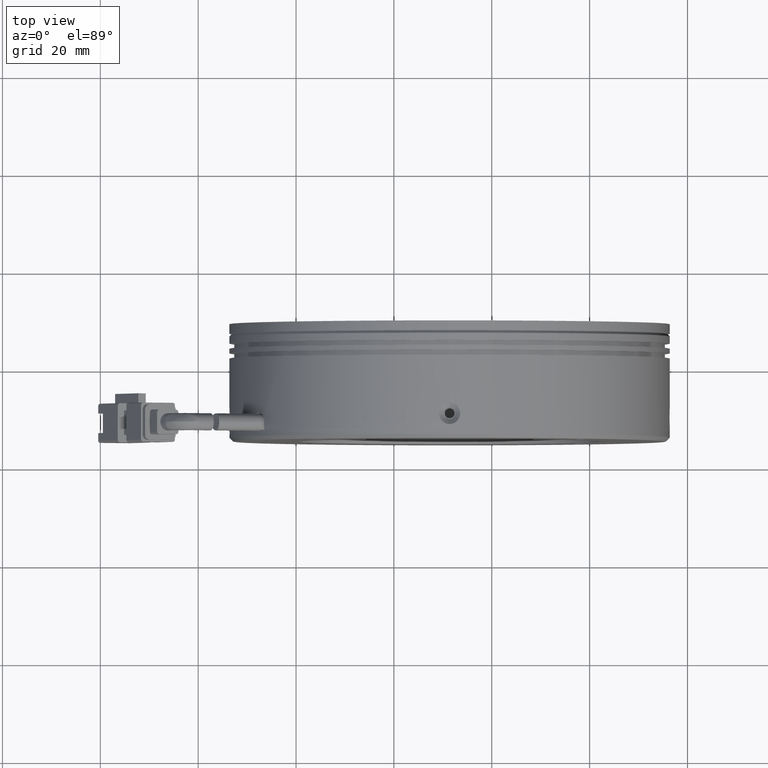
[diagram: clean part render]
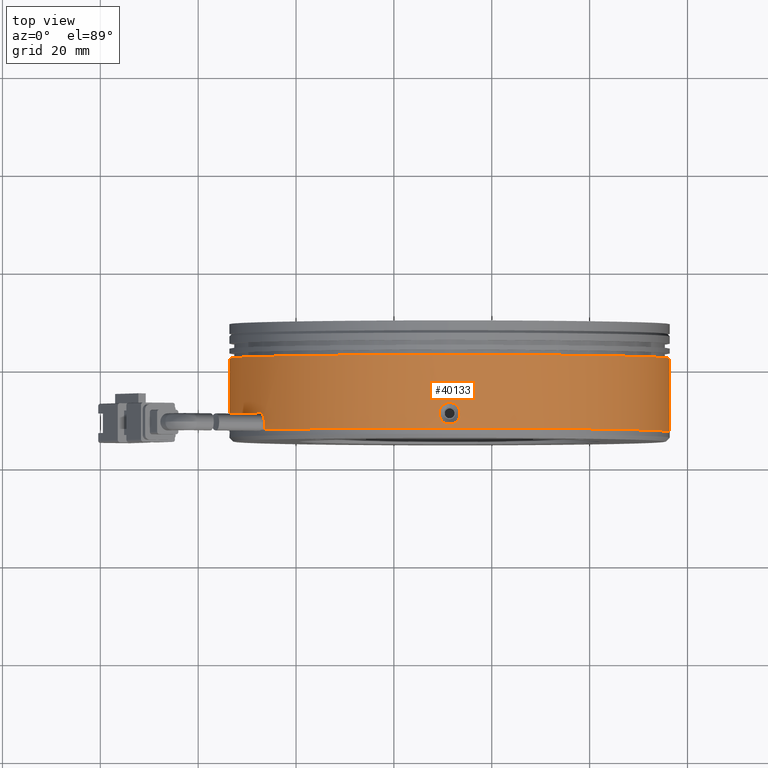
[diagram: same view with one face highlighted and labeled with its STEP entity id]
A machine part, top view. The second image highlights one B-rep face of the part: STEP entity #40133.
In plain terms, the highlighted cylindrical surface (partial cylindrical patch) has radius 45 mm, axis along (-0, 1, -0).
Its self-contained STEP definition (entity closure, byte-faithful):
#1022 = CIRCLE ( 'NONE', #13355, 45.00000000000000700 ) ;
#1561 = ORIENTED_EDGE ( 'NONE', *, *, #25722, .T. ) ;
#1722 = DIRECTION ( 'NONE',  ( -0.0000000000000000000, 1.000000000000000000, -0.0000000000000000000 ) ) ;
#2210 = CARTESIAN_POINT ( 'NONE',  ( -6.582203148761800000, 10.67532294286833800, 44.95371608337226400 ) ) ;
#2340 = B_SPLINE_CURVE_WITH_KNOTS ( 'NONE', 3,
 ( #102224, #121687, #15485, #83083, #25242, #92873, #34939, #102647, #44636, #112404, #54322, #122106, #64059, #6126, #73734, #15905, #83495, #25648, #93283, #35357, #103065, #45052, #112809, #54731, #122513, #64483, #6541, #74142, #16329, #83923 ),
 .UNSPECIFIED., .F., .F.,
 ( 4, 2, 2, 2, 2, 2, 2, 2, 2, 2, 2, 2, 2, 2, 4 ),
 ( 0.006812577702656749000, 0.007238343469868680800, 0.007664109237080613500, 0.008089875004292545300, 0.008515640771504478000, 0.009367172305928341700, 0.009792938073140274400, 0.01021870384035220700, 0.01064446960756414200, 0.01107023537477607200, 0.01192176690919994500, 0.01234753267641188100, 0.01277329844362381700, 0.01319906421083575200, 0.01362482997804768800 ),
 .UNSPECIFIED. ) ;
#2630 = CARTESIAN_POINT ( 'NONE',  ( -7.660916148896670400, 8.001387510345676200, 44.98989713312852200 ) ) ;
#2727 = VERTEX_POINT ( 'NONE', #95015 ) ;
#4400 = CARTESIAN_POINT ( 'NONE',  ( -48.61571183505931500, 8.523604335538905700, 20.63029804019195600 ) ) ;
#4806 = CARTESIAN_POINT ( 'NONE',  ( -48.11778569940004500, 10.36742906659814500, 21.56972644323996100 ) ) ;
#5234 = CARTESIAN_POINT ( 'NONE',  ( -46.76948939058715400, 9.920386518002432700, 23.87216586767282300 ) ) ;
#5882 = CARTESIAN_POINT ( 'NONE',  ( -8.623327525382890700, 7.773604335542718700, 45.00000000000002100 ) ) ;
#6126 = CARTESIAN_POINT ( 'NONE',  ( -53.57264819732593300, 10.25732354804166000, 2.135249001952388000 ) ) ;
#6259 = B_SPLINE_CURVE_WITH_KNOTS ( 'NONE', 3,
 ( #4400, #23941, #91584, #33612, #101341, #43326, #111092, #52998, #120813, #62759, #4806, #72434, #14598, #82192, #24355, #91997, #34051, #101734, #43730, #111503, #53436, #121227, #63167, #5234, #72845, #15023, #82610, #24761, #92403, #34463, #102170, #44143 ),
 .UNSPECIFIED., .F., .F.,
 ( 4, 2, 2, 2, 2, 2, 2, 2, 2, 2, 2, 2, 2, 2, 2, 4 ),
 ( 0.0000000000000000000, 0.0004141680494184936300, 0.0008283360988369872500, 0.001242504148255481000, 0.001656672197673974500, 0.002485008296510955000, 0.002899176345929454200, 0.003313344395347952900, 0.003727512444766451600, 0.004141680494184949900, 0.004555848543603449100, 0.004970016593021947400, 0.005384184642440447400, 0.005798352691858945700, 0.006212520741277444800, 0.006626688790695944000 ),
 .UNSPECIFIED. ) ;
#6421 = ORIENTED_EDGE ( 'NONE', *, *, #44944, .T. ) ;
#6481 = CARTESIAN_POINT ( 'NONE',  ( 36.36656958145873400, 8.001390214084116400, 0.9623851046667836200 ) ) ;
#6541 = CARTESIAN_POINT ( 'NONE',  ( -53.61998204981698300, 7.846389619477724500, 0.5661156005386504000 ) ) ;
#6908 = CARTESIAN_POINT ( 'NONE',  ( 36.33035871481416000, 10.67353233999194900, 2.041792133796319900 ) ) ;
#7496 = CARTESIAN_POINT ( 'NONE',  ( -9.585712630045991400, 8.001390214091607300, 44.98989710684171000 ) ) ;
#7916 = CARTESIAN_POINT ( 'NONE',  ( -10.66511965917129100, 10.67353233998941400, 44.95368624019741300 ) ) ;
#8432 = B_SPLINE_CURVE_WITH_KNOTS ( 'NONE', 3,
 ( #45864, #103906, #94117, #79389, #64430, #6481, #74094, #16276, #83863, #26005, #93658, #35729, #103442, #45422, #113199, #55101, #122872, #64827, #6908, #74519, #16694, #84285, #26426, #94067, #36148, #103866, #45813, #113586, #55527, #123285 ),
 .UNSPECIFIED., .F., .F.,
 ( 4, 2, 2, 2, 2, 2, 2, 2, 2, 2, 2, 2, 2, 2, 4 ),
 ( 0.006812577702680942300, 0.007238343469894494400, 0.007664109237108046400, 0.008089875004321598500, 0.008515640771535151400, 0.009367172305962255500, 0.009792938073175810200, 0.01021870384038936500, 0.01064446960760292000, 0.01107023537481647400, 0.01192176690924358400, 0.01234753267645713800, 0.01277329844367069300, 0.01319906421088424900, 0.01362482997809780400 ),
 .UNSPECIFIED. ) ;
#11235 = VERTEX_POINT ( 'NONE', #124844 ) ;
#11867 = ORIENTED_EDGE ( 'NONE', *, *, #16995, .T. ) ;
#11929 = CARTESIAN_POINT ( 'NONE',  ( -6.488078523430362800, 10.25732354804171600, 44.94932067194307000 ) ) ;
#12340 = CARTESIAN_POINT ( 'NONE',  ( -8.057211924844139600, 7.846389619477705900, 44.99665452443411300 ) ) ;
#13044 = LINE ( 'NONE', #64212, #38824 ) ;
#13355 = AXIS2_PLACEMENT_3D ( 'NONE', #36050, #103765, #45712 ) ;
#14598 = CARTESIAN_POINT ( 'NONE',  ( -47.86656886007198600, 10.56397073976971700, 22.02241199526636000 ) ) ;
#15023 = CARTESIAN_POINT ( 'NONE',  ( -46.63952893542357000, 9.586064993795025300, 24.07850619191232500 ) ) ;
#15082 = EDGE_CURVE ( 'NONE', #116956, #17695, #1022, .T. ) ;
#15485 = CARTESIAN_POINT ( 'NONE',  ( -53.62263988143161000, 12.15898943221554700, 0.2850486780225427500 ) ) ;
#15626 = CARTESIAN_POINT ( 'NONE',  ( -8.623327525382890700, 6.973604335538903200, 1.057097118173366800E-014 ) ) ;
#15680 = CARTESIAN_POINT ( 'NONE',  ( 36.37667247461711600, 7.773604335534530600, 1.608188177789675600E-014 ) ) ;
#15800 = DIRECTION ( 'NONE',  ( -0.0000000000000000000, 1.000000000000000000, -0.0000000000000000000 ) ) ;
#15905 = CARTESIAN_POINT ( 'NONE',  ( -53.57199913319374900, 9.831763633693192600, 2.148702095226074200 ) ) ;
#16276 = CARTESIAN_POINT ( 'NONE',  ( 36.35742917959929300, 8.232695070670910600, 1.321104259194183100 ) ) ;
#16329 = CARTESIAN_POINT ( 'NONE',  ( -53.62332752538289800, 7.773604335542724900, 0.1436688072208375800 ) ) ;
#16694 = CARTESIAN_POINT ( 'NONE',  ( 36.34394254193026800, 11.31330287511116900, 1.727469934494472600 ) ) ;
#16779 = ORIENTED_EDGE ( 'NONE', *, *, #77330, .T. ) ;
#16995 = EDGE_CURVE ( 'NONE', #53717, #108885, #54502, .T. ) ;
#17254 = CARTESIAN_POINT ( 'NONE',  ( -9.944431784572012500, 8.232695070677550600, 44.98075670498234800 ) ) ;
#17664 = CARTESIAN_POINT ( 'NONE',  ( -10.35079745987060900, 11.31330287510619400, 44.96727006731341400 ) ) ;
#17695 = VERTEX_POINT ( 'NONE', #77075 ) ;
#18642 = CARTESIAN_POINT ( 'NONE',  ( -8.623327525382890700, 6.973604335538903200, 1.057097118173366800E-014 ) ) ;
#20817 = CARTESIAN_POINT ( 'NONE',  ( 36.37667247461711600, 6.973604335538903200, 1.608188177789675600E-014 ) ) ;
#21301 = CARTESIAN_POINT ( 'NONE',  ( -8.338278847360346200, 12.15898943221556600, 44.99931235604874000 ) ) ;
#21715 = CARTESIAN_POINT ( 'NONE',  ( -6.474625430156672600, 9.831763633693231700, 44.94867160781088000 ) ) ;
#22131 = CARTESIAN_POINT ( 'NONE',  ( -8.479644991464287100, 7.773604335542708900, 45.00000000000002800 ) ) ;
#23624 = FACE_BOUND ( 'NONE', #93303, .T. ) ;
#23941 = CARTESIAN_POINT ( 'NONE',  ( -48.61571012626155400, 8.663581518364177100, 20.63030135274209400 ) ) ;
#24355 = CARTESIAN_POINT ( 'NONE',  ( -47.66415282424452500, 10.63062943163898800, 22.37930036749881400 ) ) ;
#24761 = CARTESIAN_POINT ( 'NONE',  ( -46.54541290970392700, 9.206781166141931600, 24.22639789336174600 ) ) ;
#25242 = CARTESIAN_POINT ( 'NONE',  ( -53.61804927995928700, 12.05805315233403100, 0.7014563437106221500 ) ) ;
#25249 = LINE ( 'NONE', #51094, #50846 ) ;
#25372 = DIRECTION ( 'NONE',  ( -1.000000000000000000, 0.0000000000000000000, 0.0000000000000000000 ) ) ;
#25648 = CARTESIAN_POINT ( 'NONE',  ( -53.57517065982484900, 9.409703381289848100, 2.081469694106937500 ) ) ;
#25722 = EDGE_CURVE ( 'NONE', #77549, #51800, #39060, .T. ) ;
#26005 = CARTESIAN_POINT ( 'NONE',  ( 36.34401231252348900, 8.631777203777696500, 1.725417793051698100 ) ) ;
#26426 = CARTESIAN_POINT ( 'NONE',  ( 36.35741526266765100, 11.71410950698705900, 1.321485807909735400 ) ) ;
#26578 = CARTESIAN_POINT ( 'NONE',  ( -8.908376203405433500, 7.788219238862238200, 44.99931235604873300 ) ) ;
#26984 = CARTESIAN_POINT ( 'NONE',  ( -10.34874531842797700, 8.631777203782860400, 44.96733983790666400 ) ) ;
#27308 = CARTESIAN_POINT ( 'NONE',  ( -48.61571183505931500, 8.523604335538905700, 20.63029804019195600 ) ) ;
#27384 = CARTESIAN_POINT ( 'NONE',  ( -9.944813333287378000, 11.71410950698056700, 44.98074278805069800 ) ) ;
#27688 = EDGE_CURVE ( 'NONE', #2727, #17695, #31185, .T. ) ;
#28013 = CARTESIAN_POINT ( 'NONE',  ( -53.62332752538289800, 7.773604335542722200, -7.175110677120584500E-014 ) ) ;
#28269 = ORIENTED_EDGE ( 'NONE', *, *, #74918, .F. ) ;
#30124 = ORIENTED_EDGE ( 'NONE', *, *, #85879, .T. ) ;
#30469 = CARTESIAN_POINT ( 'NONE',  ( -46.48588187067174700, 8.523604335538902200, 24.31927174999383500 ) ) ;
#30998 = CARTESIAN_POINT ( 'NONE',  ( -7.921871181672250900, 12.05805315233406800, 44.99472175457638900 ) ) ;
#31185 = LINE ( 'NONE', #96071, #53845 ) ;
#31407 = CARTESIAN_POINT ( 'NONE',  ( -6.541857831275807600, 9.409703381289865800, 44.95184313444195100 ) ) ;
#33612 = CARTESIAN_POINT ( 'NONE',  ( -48.58415678345259200, 9.072005393394945800, 20.69137199229797000 ) ) ;
#34051 = CARTESIAN_POINT ( 'NONE',  ( -47.45509811244421200, 10.61720603190169000, 22.74009722674689000 ) ) ;
#34149 = VECTOR ( 'NONE', #44159, 1000.000000000000000 ) ;
#34463 = CARTESIAN_POINT ( 'NONE',  ( -46.49360950722893900, 8.803697521006126800, 24.30725212021603800 ) ) ;
#34939 = CARTESIAN_POINT ( 'NONE',  ( -53.61036664397417400, 11.87713271022997600, 1.086324794339401200 ) ) ;
#35098 = EDGE_LOOP ( 'NONE', ( #11867, #16779, #88204, #123300, #76507, #87786, #51438, #28269, #30124, #92042, #104729, #124430 ) ) ;
#35357 = CARTESIAN_POINT ( 'NONE',  ( -53.58405645815616200, 8.875238039791101500, 1.882588811326614700 ) ) ;
#35729 = CARTESIAN_POINT ( 'NONE',  ( 36.33038855798901100, 9.271885728206706600, 2.041124376628928900 ) ) ;
#36050 = CARTESIAN_POINT ( 'NONE',  ( -8.623327525382890700, 21.97360433553890100, 1.057097118173366800E-014 ) ) ;
#36148 = CARTESIAN_POINT ( 'NONE',  ( 36.36656960774553200, 11.94582116073950600, 0.9624113764901115500 ) ) ;
#36709 = CARTESIAN_POINT ( 'NONE',  ( -10.66445190200398100, 9.271885728209467100, 44.95371608337225000 ) ) ;
#37126 = CARTESIAN_POINT ( 'NONE',  ( -9.585738901869113700, 11.94582116073213000, 44.98989713312852200 ) ) ;
#37202 = LINE ( 'NONE', #44586, #34149 ) ;
#37645 = B_SPLINE_CURVE_WITH_KNOTS ( 'NONE', 3,
 ( #49974, #59699, #21301, #88962, #30998, #98691, #40706, #108489, #50396, #118146, #60111, #2210, #69829, #11929, #79553, #21715, #89362, #31407, #99106, #41091, #108883, #50789, #118570, #60525, #2630, #70244, #12340, #79977, #22131, #89786 ),
 .UNSPECIFIED., .F., .F.,
 ( 4, 2, 2, 2, 2, 2, 2, 2, 2, 2, 2, 2, 2, 2, 4 ),
 ( 1.734723475976807100E-018, 0.0004257861064160340200, 0.0008515722128320663000, 0.001277358319248103400, 0.001703144425664140400, 0.002554716638496214900, 0.002980502744912249400, 0.003406288851328284300, 0.003832074957744318700, 0.004257861064160353200, 0.005109433276992423000, 0.005535219383408456100, 0.005961005489824489300, 0.006386791596240522400, 0.006812577702656554700 ),
 .UNSPECIFIED. ) ;
#38824 = VECTOR ( 'NONE', #55307, 1000.000000000000000 ) ;
#39060 = B_SPLINE_CURVE_WITH_KNOTS ( 'NONE', 3,
 ( #55678, #94222, #26578, #123439, #65404, #7496, #75095, #17254, #84861, #26984, #94638, #36709, #104439, #46375, #114159, #56078, #123852, #65819, #7916, #75497, #17664, #85270, #27384, #95048, #37126, #104855, #46797, #114590, #56488, #124264 ),
 .UNSPECIFIED., .F., .F.,
 ( 4, 2, 2, 2, 2, 2, 2, 2, 2, 2, 2, 2, 2, 2, 4 ),
 ( 0.006812577702656554700, 0.007238343469868505600, 0.007664109237080456500, 0.008089875004292408300, 0.008515640771504358300, 0.009367172305928261900, 0.009792938073140208500, 0.01021870384035215700, 0.01064446960756410500, 0.01107023537477605200, 0.01192176690919994700, 0.01234753267641189300, 0.01277329844362383600, 0.01319906421083578100, 0.01362482997804772600 ),
 .UNSPECIFIED. ) ;
#40133 = ADVANCED_FACE ( 'NONE', ( #23624, #120514 ), #85572, .T. ) ;
#40706 = CARTESIAN_POINT ( 'NONE',  ( -7.537002731043447300, 11.87713271023003600, 44.98703911859131200 ) ) ;
#41091 = CARTESIAN_POINT ( 'NONE',  ( -6.740738714056140800, 8.875238039791097900, 44.96072893277327200 ) ) ;
#43326 = CARTESIAN_POINT ( 'NONE',  ( -48.51530304119831500, 9.462181123268450700, 20.82386119574351500 ) ) ;
#43730 = CARTESIAN_POINT ( 'NONE',  ( -47.24948897088839300, 10.52470785249345300, 23.08757702518154500 ) ) ;
#44143 = CARTESIAN_POINT ( 'NONE',  ( -46.48588187067174700, 8.523604335538902200, 24.31927174999383500 ) ) ;
#44159 = DIRECTION ( 'NONE',  ( -0.0000000000000000000, 1.000000000000000000, -0.0000000000000000000 ) ) ;
#44586 = CARTESIAN_POINT ( 'NONE',  ( 36.37667247461711600, 6.973604335538903200, 1.608188177789675600E-014 ) ) ;
#44636 = CARTESIAN_POINT ( 'NONE',  ( -53.60069453458314800, 11.62128199461645800, 1.430432306784017700 ) ) ;
#44944 = EDGE_CURVE ( 'NONE', #51800, #77549, #37645, .T. ) ;
#45052 = CARTESIAN_POINT ( 'NONE',  ( -53.60072925815778400, 8.324867313243848000, 1.429410993693936800 ) ) ;
#45422 = CARTESIAN_POINT ( 'NONE',  ( 36.32599314655977500, 9.689885123034903500, 2.135249001960736000 ) ) ;
#45712 = DIRECTION ( 'NONE',  ( -1.000000000000000000, 0.0000000000000000000, 0.0000000000000000000 ) ) ;
#45813 = CARTESIAN_POINT ( 'NONE',  ( 36.37332699905115900, 12.10081905160804200, 0.5661156005411434000 ) ) ;
#45864 = CARTESIAN_POINT ( 'NONE',  ( 36.37667247461711600, 7.773604335534530600, 1.608188177789675600E-014 ) ) ;
#46251 = EDGE_CURVE ( 'NONE', #72912, #118386, #8432, .T. ) ;
#46375 = CARTESIAN_POINT ( 'NONE',  ( -10.75857652733541900, 9.689885123036090100, 44.94932067194307000 ) ) ;
#46797 = CARTESIAN_POINT ( 'NONE',  ( -9.189443125921636500, 12.10081905160010000, 44.99665452443410600 ) ) ;
#48210 = DIRECTION ( 'NONE',  ( -0.0000000000000000000, 1.000000000000000000, -0.0000000000000000000 ) ) ;
#49974 = CARTESIAN_POINT ( 'NONE',  ( -8.623327525382890700, 12.17360433553508700, 45.00000000000002100 ) ) ;
#50396 = CARTESIAN_POINT ( 'NONE',  ( -7.192895218598810200, 11.62128199461652200, 44.97736700920025800 ) ) ;
#50789 = CARTESIAN_POINT ( 'NONE',  ( -7.193916531688829600, 8.324867313243839100, 44.97740173277489400 ) ) ;
#50846 = VECTOR ( 'NONE', #90088, 1000.000000000000000 ) ;
#51094 = CARTESIAN_POINT ( 'NONE',  ( -53.62332752538289800, 6.973604335538903200, 1.057097118173366800E-014 ) ) ;
#51438 = ORIENTED_EDGE ( 'NONE', *, *, #57510, .T. ) ;
#51800 = VERTEX_POINT ( 'NONE', #61823 ) ;
#52998 = CARTESIAN_POINT ( 'NONE',  ( -48.41223003128888500, 9.812838408305284000, 21.02021186322266300 ) ) ;
#53057 = EDGE_CURVE ( 'NONE', #118386, #116956, #37202, .T. ) ;
#53436 = CARTESIAN_POINT ( 'NONE',  ( -47.05225851073662800, 10.35465811422459700, 23.41432390700316900 ) ) ;
#53717 = VERTEX_POINT ( 'NONE', #115111 ) ;
#53845 = VECTOR ( 'NONE', #48210, 1000.000000000000000 ) ;
#54227 = CARTESIAN_POINT ( 'NONE',  ( 36.37667247461711600, 21.97360433553890100, 1.608188177789675600E-014 ) ) ;
#54322 = CARTESIAN_POINT ( 'NONE',  ( -53.58403117716987700, 11.07033514176670200, 1.883146525710874600 ) ) ;
#54502 = CIRCLE ( 'NONE', #109393, 45.00000000000000700 ) ;
#54731 = CARTESIAN_POINT ( 'NONE',  ( -53.61030432972807300, 8.071645630193149400, 1.088790388723212200 ) ) ;
#55101 = CARTESIAN_POINT ( 'NONE',  ( 36.32534408242757700, 10.11544503738500300, 2.148702095234499100 ) ) ;
#55307 = DIRECTION ( 'NONE',  ( -0.0000000000000000000, 1.000000000000000000, -0.0000000000000000000 ) ) ;
#55527 = CARTESIAN_POINT ( 'NONE',  ( 36.37667247461711600, 12.17360433554328500, 0.1436688072217061400 ) ) ;
#55678 = CARTESIAN_POINT ( 'NONE',  ( -8.623327525382890700, 7.773604335542718700, 45.00000000000002100 ) ) ;
#56078 = CARTESIAN_POINT ( 'NONE',  ( -10.77202962060910900, 10.11544503738457700, 44.94867160781087300 ) ) ;
#56488 = CARTESIAN_POINT ( 'NONE',  ( -8.766996332603804700, 12.17360433553509400, 45.00000000000002800 ) ) ;
#56580 = VERTEX_POINT ( 'NONE', #28013 ) ;
#57510 = EDGE_CURVE ( 'NONE', #2727, #56580, #2340, .T. ) ;
#57572 = DIRECTION ( 'NONE',  ( 0.0000000000000000000, -1.000000000000000000, 0.0000000000000000000 ) ) ;
#59699 = CARTESIAN_POINT ( 'NONE',  ( -8.479651854977062100, 12.17360433553509200, 45.00000000000002800 ) ) ;
#60111 = CARTESIAN_POINT ( 'NONE',  ( -6.740180999671914600, 11.07033514176676500, 44.96070365178698600 ) ) ;
#60525 = CARTESIAN_POINT ( 'NONE',  ( -7.534537136659563000, 8.071645630193131600, 44.98697680434520400 ) ) ;
#61016 = VERTEX_POINT ( 'NONE', #27308 ) ;
#61823 = CARTESIAN_POINT ( 'NONE',  ( -8.623327525382890700, 12.17360433553508700, 45.00000000000002100 ) ) ;
#62759 = CARTESIAN_POINT ( 'NONE',  ( -48.23089225670880600, 10.21143279297812100, 21.36070260994521800 ) ) ;
#63100 = AXIS2_PLACEMENT_3D ( 'NONE', #73644, #15800, #83398 ) ;
#63167 = CARTESIAN_POINT ( 'NONE',  ( -46.87504331763062000, 10.11652803674569000, 23.70266244979985600 ) ) ;
#64059 = CARTESIAN_POINT ( 'NONE',  ( -53.57515778090357400, 10.53654761976347800, 2.081747786923475300 ) ) ;
#64212 = CARTESIAN_POINT ( 'NONE',  ( -48.61571183505932200, 6.973604335538903200, 20.63029804019194900 ) ) ;
#64430 = CARTESIAN_POINT ( 'NONE',  ( 36.37139422919346300, 7.889155518735854900, 0.7014563437133257700 ) ) ;
#64483 = CARTESIAN_POINT ( 'NONE',  ( -53.61805577544774300, 7.889006510723914900, 0.7010773209069224300 ) ) ;
#64827 = CARTESIAN_POINT ( 'NONE',  ( 36.32851560905867000, 10.53750528978994800, 2.081469694115134500 ) ) ;
#65404 = CARTESIAN_POINT ( 'NONE',  ( -9.324783869093527900, 7.889155518743739200, 44.99472175457638900 ) ) ;
#65819 = CARTESIAN_POINT ( 'NONE',  ( -10.70479721948997200, 10.53750528978793900, 44.95184313444195100 ) ) ;
#67747 = CARTESIAN_POINT ( 'NONE',  ( -46.48588187067174700, 6.973604335538903200, 24.31927174999383800 ) ) ;
#69158 = EDGE_CURVE ( 'NONE', #89881, #53717, #109649, .T. ) ;
#69829 = CARTESIAN_POINT ( 'NONE',  ( -6.541579738459282600, 10.53654761976353900, 44.95183025552069700 ) ) ;
#70244 = CARTESIAN_POINT ( 'NONE',  ( -7.922250204475870900, 7.889006510723896200, 44.99472825006487400 ) ) ;
#72434 = CARTESIAN_POINT ( 'NONE',  ( -47.93211504806184600, 10.52376713598239600, 21.90514904812857500 ) ) ;
#72845 = CARTESIAN_POINT ( 'NONE',  ( -46.72240373866015500, 9.814180163300738600, 23.94715895002225600 ) ) ;
#72912 = VERTEX_POINT ( 'NONE', #15680 ) ;
#73644 = CARTESIAN_POINT ( 'NONE',  ( -8.623327525382890700, 6.973604335538903200, 1.057097118173366800E-014 ) ) ;
#73734 = CARTESIAN_POINT ( 'NONE',  ( -53.57200191949915100, 10.11636721544224600, 2.148643807746887900 ) ) ;
#74094 = CARTESIAN_POINT ( 'NONE',  ( 36.36371159320830800, 8.070075960840535200, 1.086324794343598700 ) ) ;
#74142 = CARTESIAN_POINT ( 'NONE',  ( -53.62262458693988500, 7.788546771889695500, 0.2875225733683894900 ) ) ;
#74519 = CARTESIAN_POINT ( 'NONE',  ( 36.33740140739007500, 11.07197063129076200, 1.882588811334083400 ) ) ;
#74918 = EDGE_CURVE ( 'NONE', #11235, #56580, #25249, .T. ) ;
#75095 = CARTESIAN_POINT ( 'NONE',  ( -9.709652319722332300, 8.070075960847768600, 44.98703911859131200 ) ) ;
#75497 = CARTESIAN_POINT ( 'NONE',  ( -10.50591633670963700, 11.07197063128670100, 44.96072893277325700 ) ) ;
#76507 = ORIENTED_EDGE ( 'NONE', *, *, #15082, .T. ) ;
#76735 = VECTOR ( 'NONE', #1722, 1000.000000000000000 ) ;
#77075 = CARTESIAN_POINT ( 'NONE',  ( -53.62332752538289800, 21.97360433553890100, 1.057097118173366800E-014 ) ) ;
#77330 = EDGE_CURVE ( 'NONE', #108885, #72912, #79771, .T. ) ;
#77549 = VERTEX_POINT ( 'NONE', #5882 ) ;
#79389 = CARTESIAN_POINT ( 'NONE',  ( 36.37336120691640000, 7.845633724335820100, 0.5633545905143042500 ) ) ;
#79553 = CARTESIAN_POINT ( 'NONE',  ( -6.474683717635864300, 10.11636721544229000, 44.94867439411627400 ) ) ;
#79771 = LINE ( 'NONE', #20817, #76735 ) ;
#79977 = CARTESIAN_POINT ( 'NONE',  ( -8.335804952014417100, 7.788546771889680400, 44.99929706155701600 ) ) ;
#81109 = CIRCLE ( 'NONE', #63100, 45.00000000000000700 ) ;
#82192 = CARTESIAN_POINT ( 'NONE',  ( -47.73228773608233400, 10.61735782648494800, 22.26000565543126400 ) ) ;
#82610 = CARTESIAN_POINT ( 'NONE',  ( -46.60343487885256100, 9.462698317998786000, 24.13533426746221600 ) ) ;
#83083 = CARTESIAN_POINT ( 'NONE',  ( -53.62001625768218800, 12.10157494673392800, 0.5633545905121381000 ) ) ;
#83222 = DIRECTION ( 'NONE',  ( -0.0000000000000000000, 1.000000000000000000, -0.0000000000000000000 ) ) ;
#83398 = DIRECTION ( 'NONE',  ( -1.000000000000000000, 0.0000000000000000000, 0.0000000000000000000 ) ) ;
#83495 = CARTESIAN_POINT ( 'NONE',  ( -53.57266122749749800, 9.687964956977491900, 2.134974708727119400 ) ) ;
#83796 = VECTOR ( 'NONE', #57572, 1000.000000000000000 ) ;
#83863 = CARTESIAN_POINT ( 'NONE',  ( 36.35403948381718200, 8.325926676454987100, 1.430432306789554600 ) ) ;
#83923 = CARTESIAN_POINT ( 'NONE',  ( -53.62332752538289800, 7.773604335542722200, -7.175110677120584500E-014 ) ) ;
#84285 = CARTESIAN_POINT ( 'NONE',  ( 36.35407420739181800, 11.62234135784011500, 1.429410993699714600 ) ) ;
#84861 = CARTESIAN_POINT ( 'NONE',  ( -10.05375983216697100, 8.325926676461287800, 44.97736700920025800 ) ) ;
#85270 = CARTESIAN_POINT ( 'NONE',  ( -10.05273851907695200, 11.62234135783396900, 44.97740173277488700 ) ) ;
#85572 = CYLINDRICAL_SURFACE ( 'NONE', #98727, 45.00000000000000700 ) ;
#85879 = EDGE_CURVE ( 'NONE', #11235, #111654, #81109, .T. ) ;
#86294 = DIRECTION ( 'NONE',  ( -0.0000000000000000000, 1.000000000000000000, -0.0000000000000000000 ) ) ;
#87786 = ORIENTED_EDGE ( 'NONE', *, *, #27688, .F. ) ;
#88204 = ORIENTED_EDGE ( 'NONE', *, *, #46251, .T. ) ;
#88962 = CARTESIAN_POINT ( 'NONE',  ( -8.059972934870741000, 12.10157494673396400, 44.99668873229931200 ) ) ;
#89362 = CARTESIAN_POINT ( 'NONE',  ( -6.488352816655626600, 9.687964956977522100, 44.94933370211461500 ) ) ;
#89786 = CARTESIAN_POINT ( 'NONE',  ( -8.623327525382890700, 7.773604335542718700, 45.00000000000002100 ) ) ;
#89881 = VERTEX_POINT ( 'NONE', #30469 ) ;
#90088 = DIRECTION ( 'NONE',  ( -0.0000000000000000000, 1.000000000000000000, -0.0000000000000000000 ) ) ;
#91584 = CARTESIAN_POINT ( 'NONE',  ( -48.60931051439907700, 8.801220067653474600, 20.64272061329033600 ) ) ;
#91997 = CARTESIAN_POINT ( 'NONE',  ( -47.52586555121216300, 10.63076739277105400, 22.61883418976041700 ) ) ;
#92042 = ORIENTED_EDGE ( 'NONE', *, *, #104104, .T. ) ;
#92403 = CARTESIAN_POINT ( 'NONE',  ( -46.52342250766837100, 9.074975093179070000, 24.26074119547914200 ) ) ;
#92873 = CARTESIAN_POINT ( 'NONE',  ( -53.61322463222460000, 11.94581845698615100, 0.9623851046630682600 ) ) ;
#93283 = CARTESIAN_POINT ( 'NONE',  ( -53.57701376558029000, 9.273676331088371000, 2.041792133788261900 ) ) ;
#93303 = EDGE_LOOP ( 'NONE', ( #1561, #6421 ) ) ;
#93658 = CARTESIAN_POINT ( 'NONE',  ( 36.33737612640379000, 8.876873529306786600, 1.883146525718196300 ) ) ;
#94067 = CARTESIAN_POINT ( 'NONE',  ( 36.36364927896218500, 11.87556304089177800, 1.088790388727696800 ) ) ;
#94117 = CARTESIAN_POINT ( 'NONE',  ( 36.37598483066583600, 7.788219238854049200, 0.2850486780236358700 ) ) ;
#94222 = CARTESIAN_POINT ( 'NONE',  ( -8.767003195788722900, 7.773604335542707100, 45.00000000000002800 ) ) ;
#94638 = CARTESIAN_POINT ( 'NONE',  ( -10.50647405109386600, 8.876873529311037500, 44.96070365178698600 ) ) ;
#95015 = CARTESIAN_POINT ( 'NONE',  ( -53.62332752538289800, 12.17360433553508700, 1.057097118173366800E-014 ) ) ;
#95048 = CARTESIAN_POINT ( 'NONE',  ( -9.712117914106219300, 11.87556304088467800, 44.98697680434519700 ) ) ;
#96071 = CARTESIAN_POINT ( 'NONE',  ( -53.62332752538289800, 6.973604335538903200, 1.057097118173366800E-014 ) ) ;
#98691 = CARTESIAN_POINT ( 'NONE',  ( -7.660942420719791800, 11.94581845698619900, 44.98989710684172400 ) ) ;
#98727 = AXIS2_PLACEMENT_3D ( 'NONE', #18642, #86294, #125232 ) ;
#98964 = CARTESIAN_POINT ( 'NONE',  ( 36.37667247461711600, 12.17360433554327100, 2.489116094179469700E-013 ) ) ;
#99106 = CARTESIAN_POINT ( 'NONE',  ( -6.581535391594491600, 9.273676331088394100, 44.95368624019742000 ) ) ;
#101341 = CARTESIAN_POINT ( 'NONE',  ( -48.56507701671903700, 9.206578055496351000, 20.72823082719210700 ) ) ;
#101734 = CARTESIAN_POINT ( 'NONE',  ( -47.31719121714096600, 10.56405916631438700, 22.97397095435851700 ) ) ;
#102170 = CARTESIAN_POINT ( 'NONE',  ( -46.48588377028195100, 8.663585723335847500, 24.31926879250013600 ) ) ;
#102224 = CARTESIAN_POINT ( 'NONE',  ( -53.62332752538289800, 12.17360433553508700, 1.057097118173366800E-014 ) ) ;
#102647 = CARTESIAN_POINT ( 'NONE',  ( -53.60408423036521700, 11.71451360040019200, 1.321104259189063600 ) ) ;
#103065 = CARTESIAN_POINT ( 'NONE',  ( -53.59059759269629800, 8.633905795971623200, 1.727469934487586800 ) ) ;
#103442 = CARTESIAN_POINT ( 'NONE',  ( 36.32850273013742300, 9.410661051312031200, 2.081747786931598100 ) ) ;
#103765 = DIRECTION ( 'NONE',  ( 0.0000000000000000000, -1.000000000000000000, 0.0000000000000000000 ) ) ;
#103866 = CARTESIAN_POINT ( 'NONE',  ( 36.37140072468191900, 12.05820216036170000, 0.7010773209099314700 ) ) ;
#103906 = CARTESIAN_POINT ( 'NONE',  ( 36.37667247461712300, 7.773604335534483500, 0.1436756704062735200 ) ) ;
#104104 = EDGE_CURVE ( 'NONE', #111654, #61016, #13044, .T. ) ;
#104439 = CARTESIAN_POINT ( 'NONE',  ( -10.70507531230649600, 9.410661051314265900, 44.95183025552069000 ) ) ;
#104729 = ORIENTED_EDGE ( 'NONE', *, *, #108549, .T. ) ;
#104855 = CARTESIAN_POINT ( 'NONE',  ( -9.324404846289910500, 12.05820216035390800, 44.99472825006485300 ) ) ;
#108463 = CARTESIAN_POINT ( 'NONE',  ( 36.37667247461711600, 6.973604335538903200, 1.608188177789675600E-014 ) ) ;
#108489 = CARTESIAN_POINT ( 'NONE',  ( -7.302223266193768900, 11.71451360040025400, 44.98075670498234000 ) ) ;
#108549 = EDGE_CURVE ( 'NONE', #61016, #89881, #6259, .T. ) ;
#108883 = CARTESIAN_POINT ( 'NONE',  ( -6.895857590895169600, 8.633905795971617900, 44.96727006731342200 ) ) ;
#108885 = VERTEX_POINT ( 'NONE', #108463 ) ;
#109393 = AXIS2_PLACEMENT_3D ( 'NONE', #15626, #83222, #25372 ) ;
#109649 = LINE ( 'NONE', #67747, #83796 ) ;
#111092 = CARTESIAN_POINT ( 'NONE',  ( -48.48477387686834600, 9.583414573400855100, 20.88231702103256600 ) ) ;
#111503 = CARTESIAN_POINT ( 'NONE',  ( -47.11680841943959300, 10.42001503343518500, 23.30812067857121800 ) ) ;
#111654 = VERTEX_POINT ( 'NONE', #114156 ) ;
#112404 = CARTESIAN_POINT ( 'NONE',  ( -53.59066736328955500, 11.31543146729487500, 1.725417793045003200 ) ) ;
#112809 = CARTESIAN_POINT ( 'NONE',  ( -53.60407031343359600, 8.233099164097254200, 1.321485807904364100 ) ) ;
#113199 = CARTESIAN_POINT ( 'NONE',  ( 36.32534686873297900, 9.830841455634853800, 2.148643807755291800 ) ) ;
#113586 = CARTESIAN_POINT ( 'NONE',  ( 36.37596953617409000, 12.15866189919627200, 0.2875225733698058600 ) ) ;
#114156 = CARTESIAN_POINT ( 'NONE',  ( -48.61571183505931500, 6.973604335538903200, 20.63029804019194900 ) ) ;
#114159 = CARTESIAN_POINT ( 'NONE',  ( -10.77197133312991500, 9.830841455635516400, 44.94867439411628100 ) ) ;
#114590 = CARTESIAN_POINT ( 'NONE',  ( -8.910850098751369700, 12.15866189918813100, 44.99929706155701600 ) ) ;
#115111 = CARTESIAN_POINT ( 'NONE',  ( -46.48588187067174700, 6.973604335538903200, 24.31927174999383800 ) ) ;
#116956 = VERTEX_POINT ( 'NONE', #54227 ) ;
#118146 = CARTESIAN_POINT ( 'NONE',  ( -6.897909732337798700, 11.31543146729494400, 44.96733983790665700 ) ) ;
#118386 = VERTEX_POINT ( 'NONE', #98964 ) ;
#118570 = CARTESIAN_POINT ( 'NONE',  ( -7.301841717478401600, 8.233099164097236400, 44.98074278805070500 ) ) ;
#120514 = FACE_OUTER_BOUND ( 'NONE', #35098, .T. ) ;
#120813 = CARTESIAN_POINT ( 'NONE',  ( -48.37000347632785200, 9.920932722011510700, 21.10003437994229400 ) ) ;
#121227 = CARTESIAN_POINT ( 'NONE',  ( -46.93173925730071300, 10.20317269934878000, 23.61099089993897600 ) ) ;
#121687 = CARTESIAN_POINT ( 'NONE',  ( -53.62332752538290500, 12.17360433553508700, 0.1436756704058295100 ) ) ;
#122106 = CARTESIAN_POINT ( 'NONE',  ( -53.57704360875513300, 10.67532294286827700, 2.041124376620972100 ) ) ;
#122513 = CARTESIAN_POINT ( 'NONE',  ( -53.61322465851140600, 8.001387510345692200, 0.9624113764861133000 ) ) ;
#122872 = CARTESIAN_POINT ( 'NONE',  ( 36.32600617673132600, 10.25924371410124900, 2.134974708735501100 ) ) ;
#123285 = CARTESIAN_POINT ( 'NONE',  ( 36.37667247461711600, 12.17360433554327100, 2.489116094179469700E-013 ) ) ;
#123300 = ORIENTED_EDGE ( 'NONE', *, *, #53057, .T. ) ;
#123439 = CARTESIAN_POINT ( 'NONE',  ( -9.186682115895038700, 7.845633724343839400, 44.99668873229931200 ) ) ;
#123852 = CARTESIAN_POINT ( 'NONE',  ( -10.75830223411015400, 10.25924371410028600, 44.94933370211461500 ) ) ;
#124264 = CARTESIAN_POINT ( 'NONE',  ( -8.623327525382890700, 12.17360433553508700, 45.00000000000002100 ) ) ;
#124430 = ORIENTED_EDGE ( 'NONE', *, *, #69158, .T. ) ;
#124844 = CARTESIAN_POINT ( 'NONE',  ( -53.62332752538289800, 6.973604335538903200, 1.057097118173366800E-014 ) ) ;
#125232 = DIRECTION ( 'NONE',  ( -1.000000000000000000, 0.0000000000000000000, 0.0000000000000000000 ) ) ;